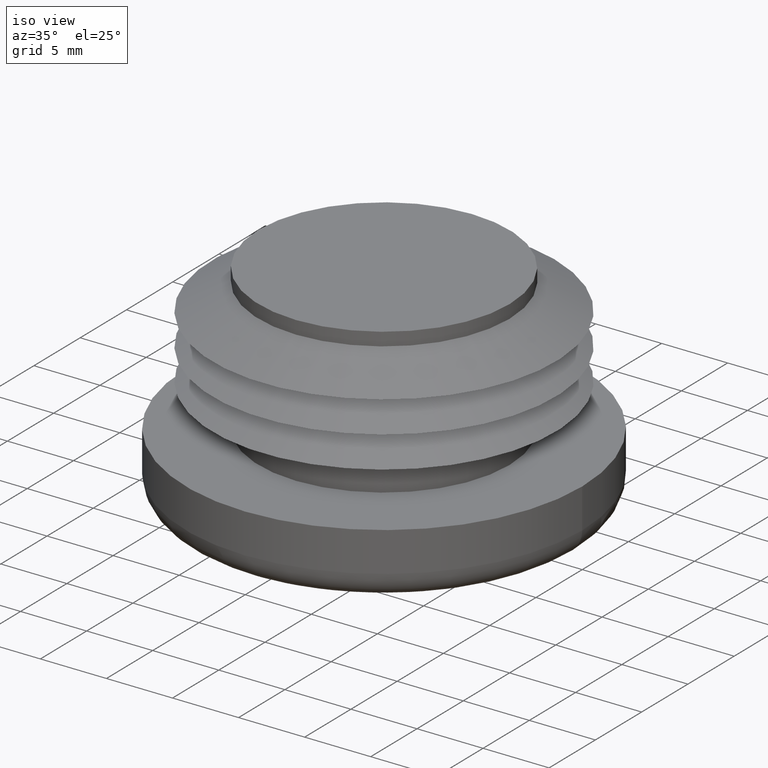
[diagram: clean part render]
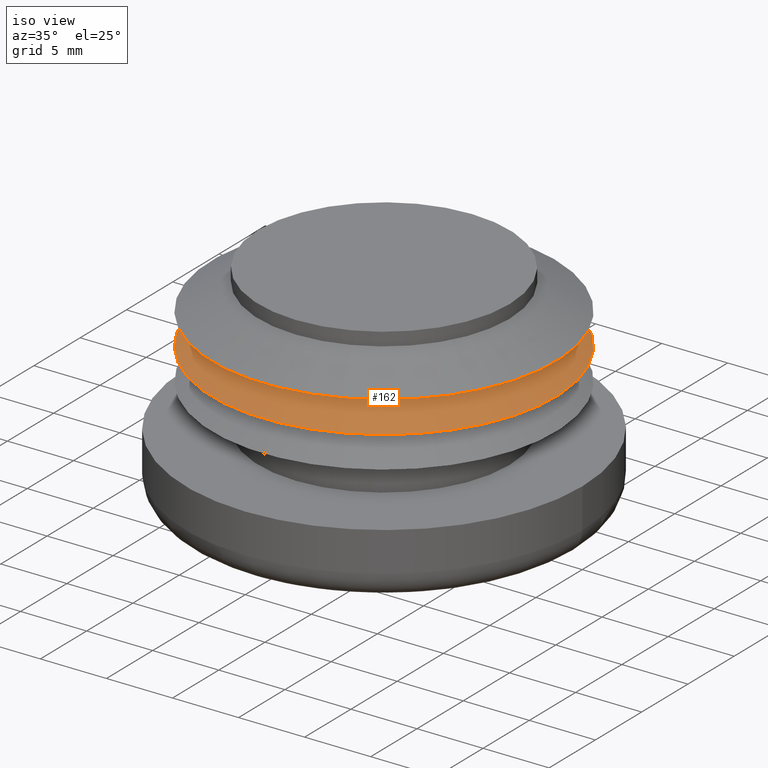
[diagram: same view with one face highlighted and labeled with its STEP entity id]
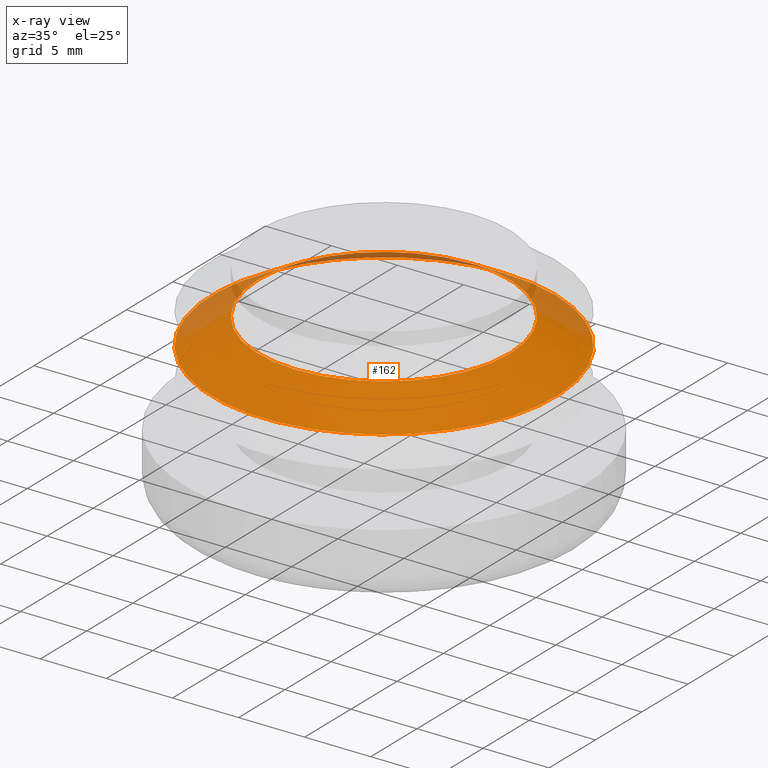
[diagram: x-ray of the same camera — body ghosted, the highlighted face saturated]
A machine part, iso view. The second image highlights one B-rep face of the part: STEP entity #162.
The next image is the same camera in x-ray: the body ghosted, the highlighted face saturated — about 14% of this face is hidden behind the body in this view.
In plain terms, the highlighted conical surface has half-angle 60.255 deg.
Its self-contained STEP definition (entity closure, byte-faithful):
#16=CONICAL_SURFACE('',#187,11.25,60.2551187030578);
#34=FACE_BOUND('',#69,.T.);
#48=FACE_OUTER_BOUND('',#68,.T.);
#68=EDGE_LOOP('',(#138));
#69=EDGE_LOOP('',(#139));
#91=CIRCLE('',#185,13.);
#93=CIRCLE('',#188,9.5);
#105=VERTEX_POINT('',#281);
#107=VERTEX_POINT('',#286);
#119=EDGE_CURVE('',#105,#105,#91,.T.);
#121=EDGE_CURVE('',#107,#107,#93,.T.);
#138=ORIENTED_EDGE('',*,*,#119,.F.);
#139=ORIENTED_EDGE('',*,*,#121,.F.);
#162=ADVANCED_FACE('',(#48,#34),#16,.T.);
#185=AXIS2_PLACEMENT_3D('',#282,#228,#229);
#187=AXIS2_PLACEMENT_3D('',#285,#232,#233);
#188=AXIS2_PLACEMENT_3D('',#287,#234,#235);
#228=DIRECTION('center_axis',(0.,0.,-1.));
#229=DIRECTION('ref_axis',(0.,1.,0.));
#232=DIRECTION('center_axis',(0.,0.,-1.));
#233=DIRECTION('ref_axis',(0.,1.,0.));
#234=DIRECTION('center_axis',(0.,0.,1.));
#235=DIRECTION('ref_axis',(0.,1.,0.));
#281=CARTESIAN_POINT('',(0.,13.,8.1));
#282=CARTESIAN_POINT('Origin',(0.,0.,8.1));
#285=CARTESIAN_POINT('Origin',(0.,0.,9.1));
#286=CARTESIAN_POINT('',(0.,9.5,10.1));
#287=CARTESIAN_POINT('Origin',(0.,0.,10.1));